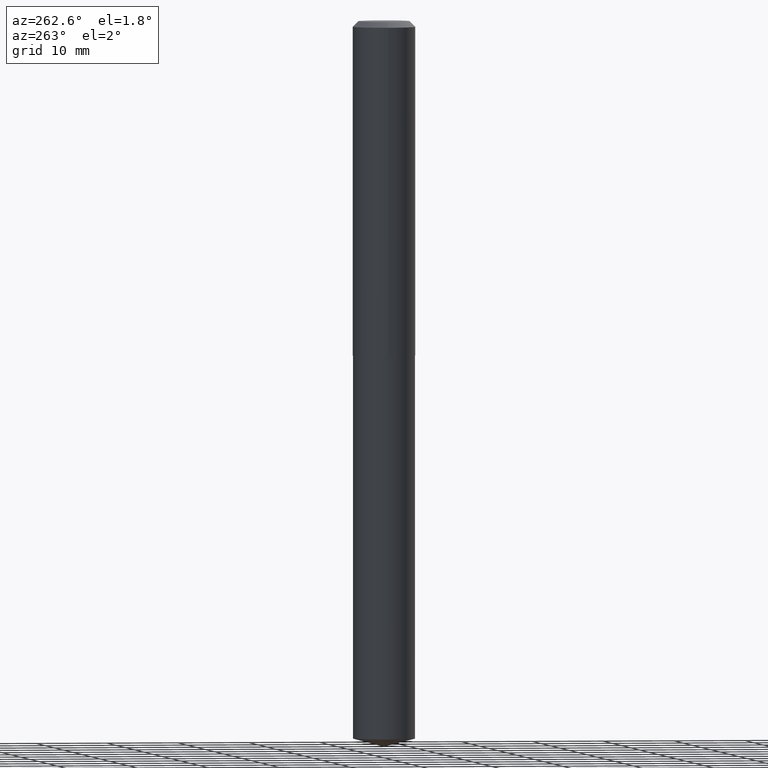
[diagram: clean part render]
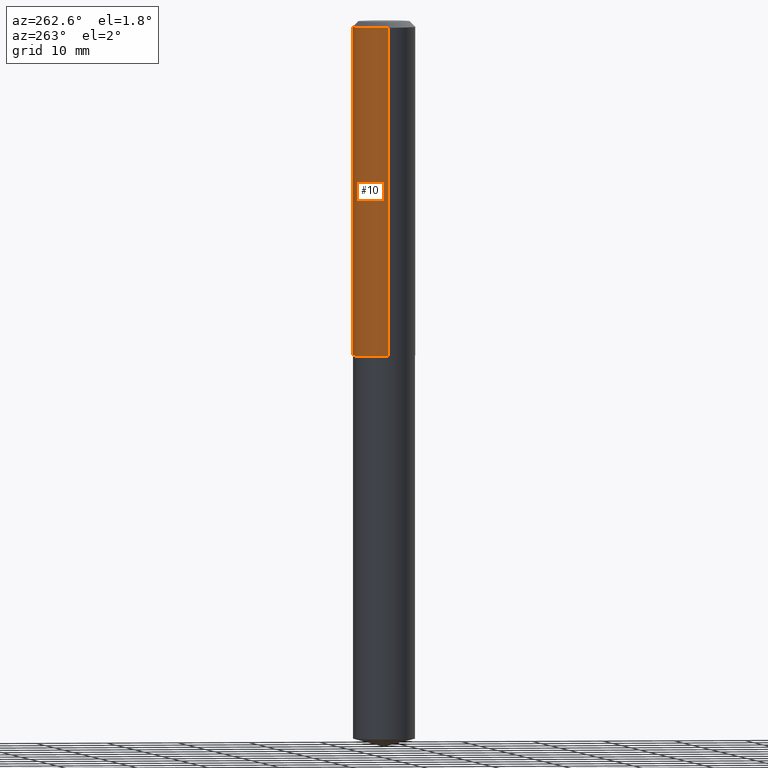
[diagram: same view with one face highlighted and labeled with its STEP entity id]
A machine part, auxiliary view. The second image highlights one B-rep face of the part: STEP entity #10.
In plain terms, the highlighted cylindrical surface (edge-blend (fillet) strip) has radius 4.3663 mm, axis along (-0, 0, 1).
Its self-contained STEP definition (entity closure, byte-faithful):
#6 = EDGE_CURVE ( 'NONE', #176, #286, #109, .T. ) ;
#7 = CARTESIAN_POINT ( 'NONE',  ( 0.1719000000000002193, -7.636218836183839889E-15, -1.843299999999999939 ) ) ;
#8 = FACE_OUTER_BOUND ( 'NONE', #244, .T. ) ;
#10 = ADVANCED_FACE ( 'NONE', ( #8 ), #157, .T. ) ;
#26 = CARTESIAN_POINT ( 'NONE',  ( 0.1719000000000001083, -1.200371284294270030E-15, 8.382147877593220085E-30 ) ) ;
#39 = CARTESIAN_POINT ( 'NONE',  ( -0.1719000000000002193, -5.214424589117957264E-15, -1.843299999999999939 ) ) ;
#53 = DIRECTION ( 'NONE',  ( -2.445468806185136877E-29, 3.491481338843145188E-15, 1.000000000000000000 ) ) ;
#63 = VECTOR ( 'NONE', #53, 39.37007874015748143 ) ;
#75 = VECTOR ( 'NONE', #253, 39.37007874015748143 ) ;
#82 = ORIENTED_EDGE ( 'NONE', *, *, #300, .T. ) ;
#105 = ORIENTED_EDGE ( 'NONE', *, *, #342, .T. ) ;
#107 = EDGE_CURVE ( 'NONE', #239, #176, #354, .T. ) ;
#109 = CIRCLE ( 'NONE', #216, 0.1719000000000000250 ) ;
#144 = ORIENTED_EDGE ( 'NONE', *, *, #6, .F. ) ;
#157 = CYLINDRICAL_SURFACE ( 'NONE', #258, 0.1719000000000001083 ) ;
#171 = DIRECTION ( 'NONE',  ( -2.445468806185136597E-29, 3.491481338843145583E-15, 1.000000000000000000 ) ) ;
#176 = VERTEX_POINT ( 'NONE', #245 ) ;
#181 = CIRCLE ( 'NONE', #187, 0.1719000000000002193 ) ;
#185 = DIRECTION ( 'NONE',  ( -2.445468806185136597E-29, 3.491481338843145583E-15, 1.000000000000000000 ) ) ;
#187 = AXIS2_PLACEMENT_3D ( 'NONE', #303, #185, #335 ) ;
#215 = CARTESIAN_POINT ( 'NONE',  ( -0.1719000000000001083, 1.221422962771612989E-15, -8.455649420148188785E-30 ) ) ;
#216 = AXIS2_PLACEMENT_3D ( 'NONE', #324, #171, #293 ) ;
#220 = DIRECTION ( 'NONE',  ( -2.445468806185136597E-29, 3.491481338843145583E-15, 1.000000000000000000 ) ) ;
#239 = VERTEX_POINT ( 'NONE', #7 ) ;
#244 = EDGE_LOOP ( 'NONE', ( #82, #105, #144, #357 ) ) ;
#245 = CARTESIAN_POINT ( 'NONE',  ( 0.1719000000000000250, -1.309480076133118342E-15, -0.03125000000000021511 ) ) ;
#253 = DIRECTION ( 'NONE',  ( -2.445468806185136877E-29, 3.491481338843145188E-15, 1.000000000000000000 ) ) ;
#258 = AXIS2_PLACEMENT_3D ( 'NONE', #338, #220, #276 ) ;
#276 = DIRECTION ( 'NONE',  ( 1.000000000000000000, -6.982962677686266711E-15, 4.876176775795936353E-29 ) ) ;
#278 = LINE ( 'NONE', #215, #75 ) ;
#286 = VERTEX_POINT ( 'NONE', #365 ) ;
#293 = DIRECTION ( 'NONE',  ( 1.000000000000000000, -6.982962677686265922E-15, 0.000000000000000000 ) ) ;
#300 = EDGE_CURVE ( 'NONE', #239, #353, #181, .T. ) ;
#303 = CARTESIAN_POINT ( 'NONE',  ( 4.507732650441062191E-29, -6.435847551889570648E-15, -1.843299999999999939 ) ) ;
#324 = CARTESIAN_POINT ( 'NONE',  ( 7.642090019328604414E-31, -1.091087918388490513E-16, -0.03125000000000021511 ) ) ;
#335 = DIRECTION ( 'NONE',  ( 1.000000000000000000, -6.982962677686263555E-15, 0.000000000000000000 ) ) ;
#338 = CARTESIAN_POINT ( 'NONE',  ( 0.000000000000000000, 0.000000000000000000, 0.000000000000000000 ) ) ;
#342 = EDGE_CURVE ( 'NONE', #353, #286, #278, .T. ) ;
#353 = VERTEX_POINT ( 'NONE', #39 ) ;
#354 = LINE ( 'NONE', #26, #63 ) ;
#357 = ORIENTED_EDGE ( 'NONE', *, *, #107, .F. ) ;
#365 = CARTESIAN_POINT ( 'NONE',  ( -0.1719000000000000250, -2.051055209092595702E-15, -0.03125000000000021511 ) ) ;